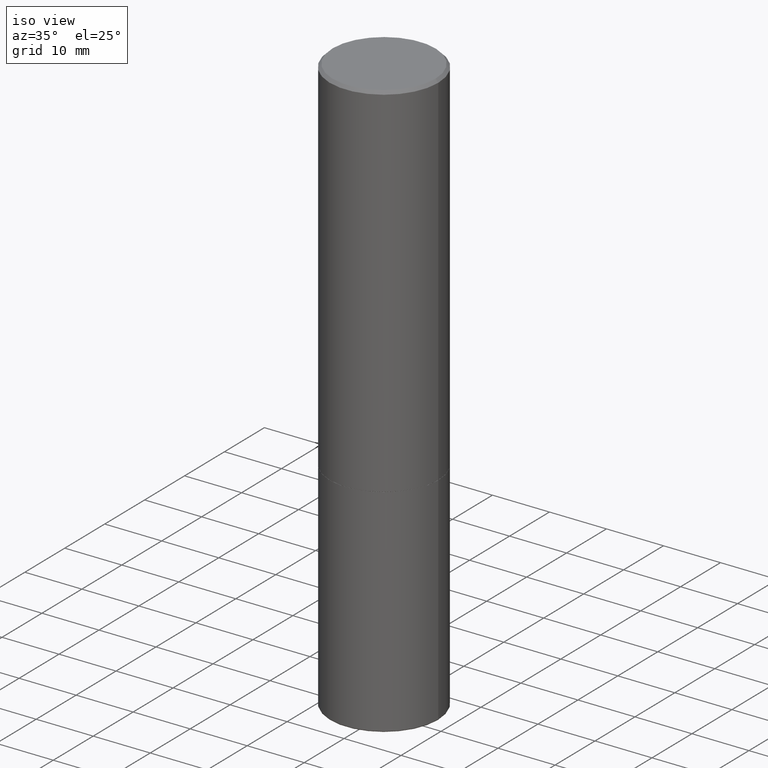
[diagram: clean part render]
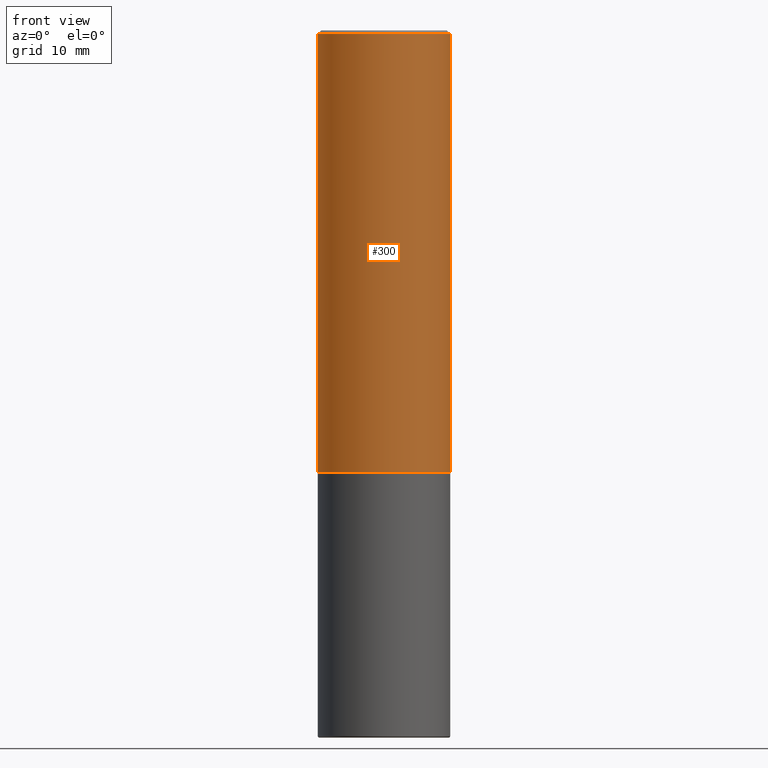
[diagram: tour spotlight — one face highlighted and labeled with its STEP entity id]
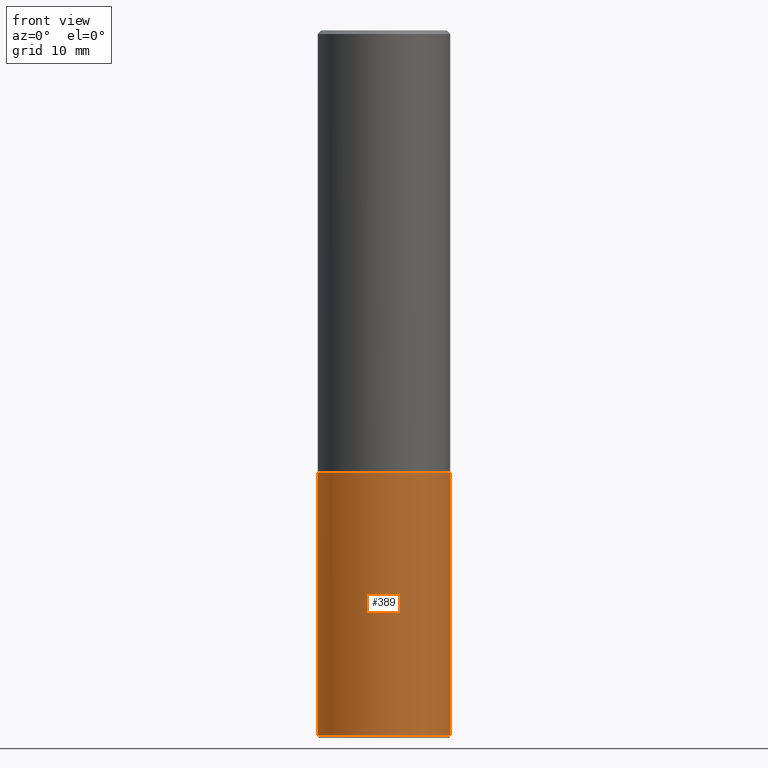
[diagram: tour spotlight — one face highlighted and labeled with its STEP entity id]
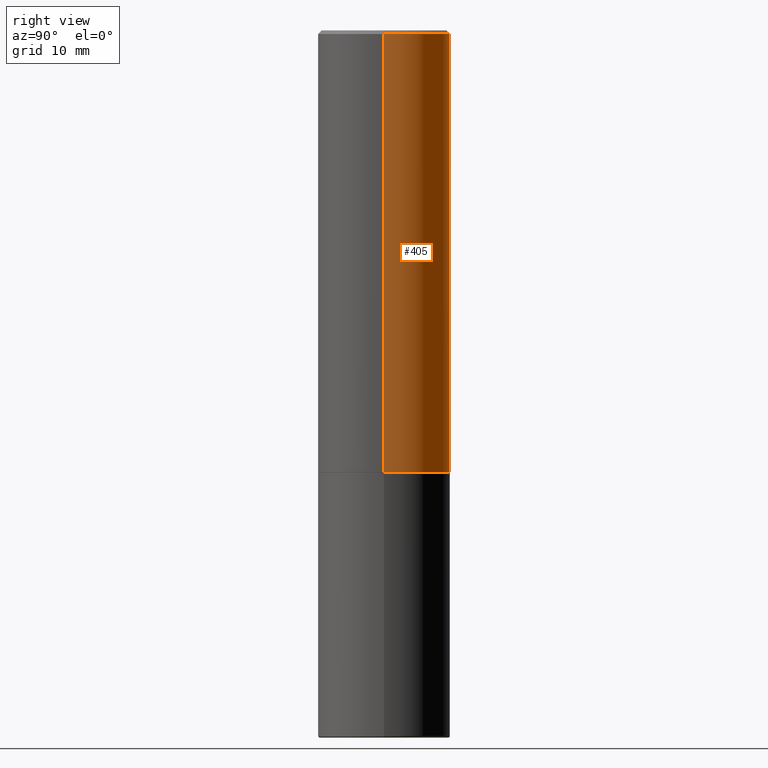
[diagram: tour spotlight — one face highlighted and labeled with its STEP entity id]
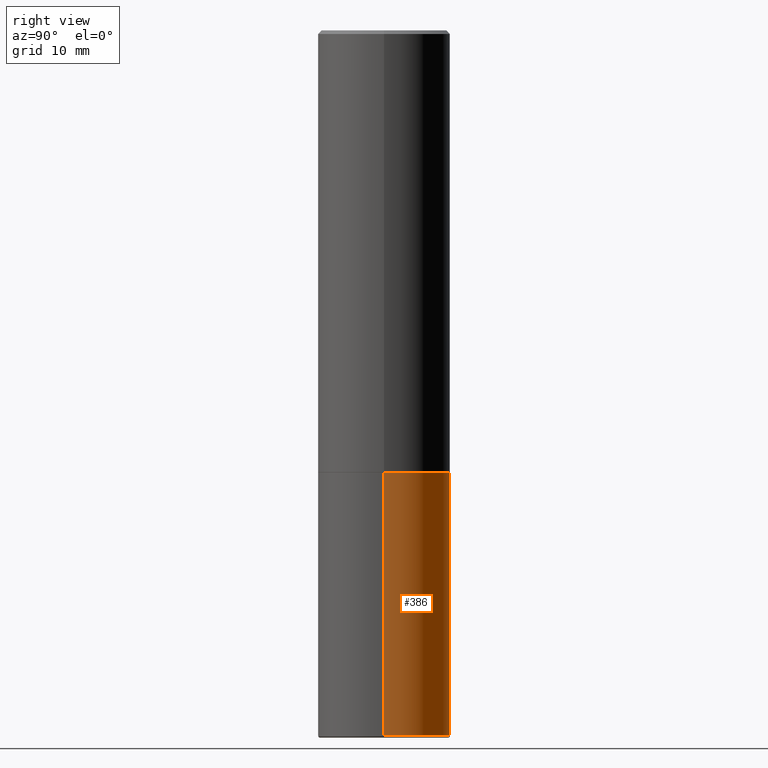
[diagram: tour spotlight — one face highlighted and labeled with its STEP entity id]
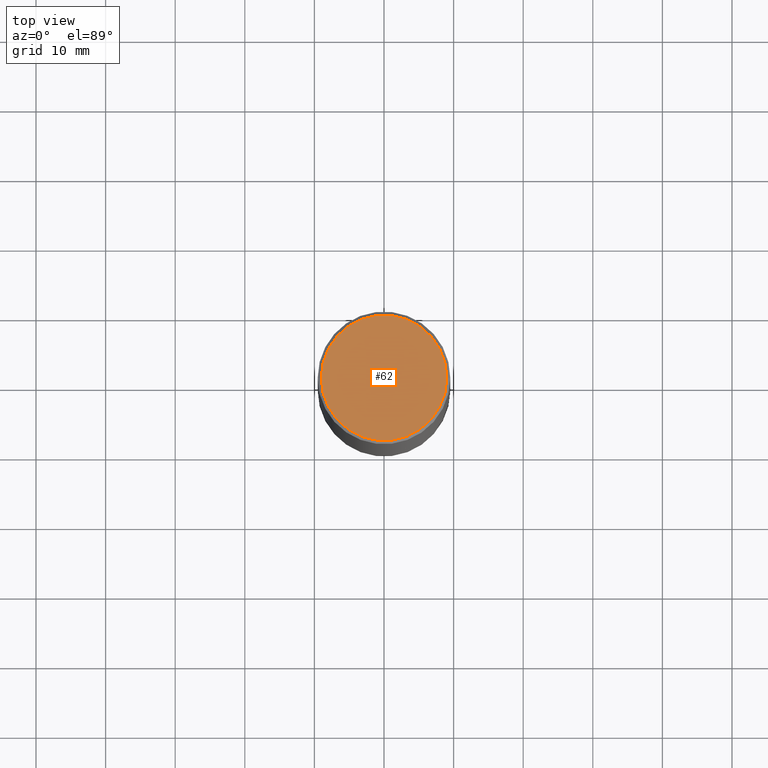
[diagram: tour spotlight — one face highlighted and labeled with its STEP entity id]
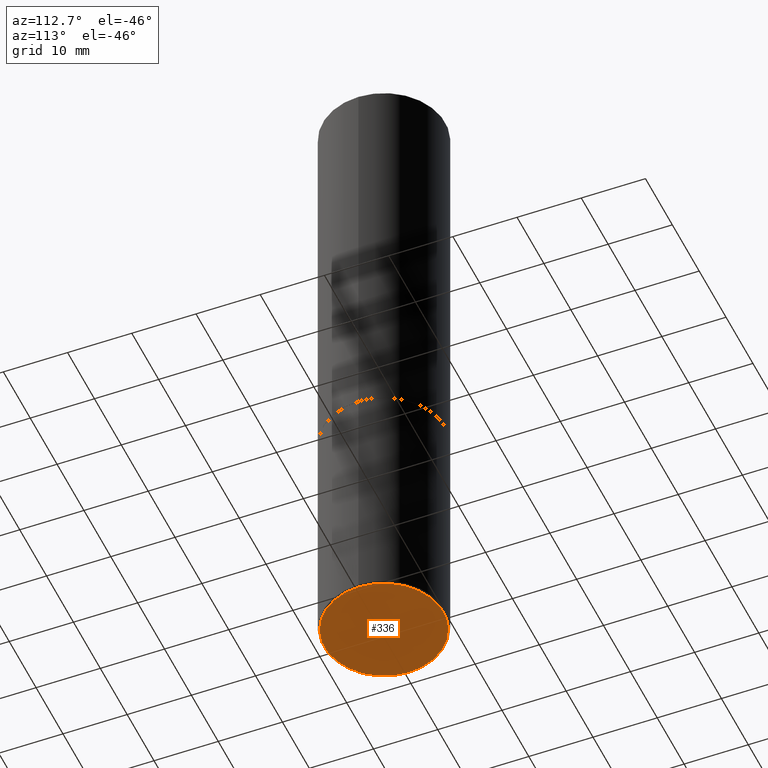
[diagram: tour spotlight — one face highlighted and labeled with its STEP entity id]
A machine part: a face-by-face anatomy tour. The part has 14 B-rep faces; the first image is the clean iso view, then the 6 largest visible faces are spotlighted one at a time (largest first), each with its STEP entity span.

Face 1 — front view, entity #300. In plain terms, the highlighted cylindrical surface (partial cylindrical patch) has radius 9.525 mm, axis along (-0, 0, 1).
Definition (entity closure, byte-faithful):
#4 = DIRECTION ( 'NONE',  ( -2.445468806185136597E-29, 3.491481338843145583E-15, 1.000000000000000000 ) ) ;
#20 = DIRECTION ( 'NONE',  ( 1.000000000000000000, -6.982962677686265922E-15, 0.000000000000000000 ) ) ;
#32 = VERTEX_POINT ( 'NONE', #150 ) ;
#35 = EDGE_LOOP ( 'NONE', ( #408, #136, #194, #264 ) ) ;
#50 = VECTOR ( 'NONE', #193, 39.37007874015748143 ) ;
#92 = LINE ( 'NONE', #296, #50 ) ;
#107 = CARTESIAN_POINT ( 'NONE',  ( 4.890937612370294178E-31, -6.982962677686321191E-17, -0.02000000000000008715 ) ) ;
#128 = CIRCLE ( 'NONE', #178, 0.3750000000000001110 ) ;
#129 = VERTEX_POINT ( 'NONE', #169 ) ;
#136 = ORIENTED_EDGE ( 'NONE', *, *, #236, .T. ) ;
#140 = CARTESIAN_POINT ( 'NONE',  ( 0.3750000000000001110, -2.642516375941188423E-15, -0.02000000000000008715 ) ) ;
#150 = CARTESIAN_POINT ( 'NONE',  ( -0.3750000000000002776, -1.732985487172563764E-15, -2.499000000000000110 ) ) ;
#169 = CARTESIAN_POINT ( 'NONE',  ( 0.3750000000000002776, -1.134382286990137353E-14, -2.499000000000000110 ) ) ;
#175 = CARTESIAN_POINT ( 'NONE',  ( 0.000000000000000000, 0.000000000000000000, 0.000000000000000000 ) ) ;
#178 = AXIS2_PLACEMENT_3D ( 'NONE', #107, #210, #353 ) ;
#193 = DIRECTION ( 'NONE',  ( -2.445468806185136877E-29, 3.491481338843145188E-15, 1.000000000000000000 ) ) ;
#194 = ORIENTED_EDGE ( 'NONE', *, *, #361, .T. ) ;
#203 = DIRECTION ( 'NONE',  ( 1.000000000000000000, -6.982962677686266711E-15, 4.876176775795935793E-29 ) ) ;
#205 = CARTESIAN_POINT ( 'NONE',  ( -0.3750000000000001110, 2.548781377355487113E-15, -0.02000000000000008715 ) ) ;
#207 = VECTOR ( 'NONE', #385, 39.37007874015748143 ) ;
#210 = DIRECTION ( 'NONE',  ( -2.445468806185136597E-29, 3.491481338843145583E-15, 1.000000000000000000 ) ) ;
#212 = EDGE_CURVE ( 'NONE', #32, #343, #92, .T. ) ;
#225 = CARTESIAN_POINT ( 'NONE',  ( 6.111226546656657010E-29, -8.725211865769021935E-15, -2.499000000000000110 ) ) ;
#227 = CIRCLE ( 'NONE', #312, 0.3750000000000002776 ) ;
#236 = EDGE_CURVE ( 'NONE', #32, #129, #227, .T. ) ;
#264 = ORIENTED_EDGE ( 'NONE', *, *, #317, .F. ) ;
#273 = CYLINDRICAL_SURFACE ( 'NONE', #293, 0.3750000000000002220 ) ;
#287 = FACE_OUTER_BOUND ( 'NONE', #35, .T. ) ;
#293 = AXIS2_PLACEMENT_3D ( 'NONE', #175, #4, #203 ) ;
#296 = CARTESIAN_POINT ( 'NONE',  ( -0.3750000000000002220, 2.664535259100377275E-15, -1.844600658845590719E-29 ) ) ;
#300 = ADVANCED_FACE ( 'NONE', ( #287 ), #273, .T. ) ;
#312 = AXIS2_PLACEMENT_3D ( 'NONE', #225, #347, #20 ) ;
#317 = EDGE_CURVE ( 'NONE', #343, #398, #128, .T. ) ;
#331 = CARTESIAN_POINT ( 'NONE',  ( 0.3750000000000002220, -2.618611004132351594E-15, 1.828566290923477043E-29 ) ) ;
#333 = LINE ( 'NONE', #331, #207 ) ;
#343 = VERTEX_POINT ( 'NONE', #205 ) ;
#347 = DIRECTION ( 'NONE',  ( -2.445468806185136597E-29, 3.491481338843145583E-15, 1.000000000000000000 ) ) ;
#353 = DIRECTION ( 'NONE',  ( 1.000000000000000000, -6.982962677686265922E-15, 0.000000000000000000 ) ) ;
#361 = EDGE_CURVE ( 'NONE', #129, #398, #333, .T. ) ;
#385 = DIRECTION ( 'NONE',  ( -2.445468806185136877E-29, 3.491481338843145188E-15, 1.000000000000000000 ) ) ;
#398 = VERTEX_POINT ( 'NONE', #140 ) ;
#408 = ORIENTED_EDGE ( 'NONE', *, *, #212, .F. ) ;

Face 2 — front view, entity #389. In plain terms, the highlighted cylindrical surface (partial cylindrical patch) has radius 9.525 mm, axis along (-0, 0, 1).
Definition (entity closure, byte-faithful):
#1 = EDGE_CURVE ( 'NONE', #253, #224, #288, .T. ) ;
#8 = CARTESIAN_POINT ( 'NONE',  ( 0.000000000000000000, 0.000000000000000000, 0.000000000000000000 ) ) ;
#13 = DIRECTION ( 'NONE',  ( -2.445468806185136597E-29, 3.491481338843145583E-15, 1.000000000000000000 ) ) ;
#18 = VECTOR ( 'NONE', #126, 39.37007874015748143 ) ;
#30 = CARTESIAN_POINT ( 'NONE',  ( -0.3749999999999999445, 2.664535259100375303E-15, -1.844600658845589318E-29 ) ) ;
#49 = EDGE_CURVE ( 'NONE', #303, #224, #72, .T. ) ;
#60 = LINE ( 'NONE', #30, #18 ) ;
#69 = CYLINDRICAL_SURFACE ( 'NONE', #185, 0.3749999999999999445 ) ;
#72 = LINE ( 'NONE', #79, #393 ) ;
#77 = CIRCLE ( 'NONE', #364, 0.3749999999999999445 ) ;
#79 = CARTESIAN_POINT ( 'NONE',  ( 0.3749999999999999445, -2.618611004132349622E-15, 1.828566290923475642E-29 ) ) ;
#97 = ORIENTED_EDGE ( 'NONE', *, *, #180, .T. ) ;
#101 = DIRECTION ( 'NONE',  ( -2.445468806185136597E-29, 3.491481338843145583E-15, 1.000000000000000000 ) ) ;
#126 = DIRECTION ( 'NONE',  ( -2.445468806185136877E-29, 3.491481338843145188E-15, 1.000000000000000000 ) ) ;
#131 = CARTESIAN_POINT ( 'NONE',  ( 9.757420536678694842E-29, -1.393101054198414910E-14, -3.989999999999999769 ) ) ;
#138 = DIRECTION ( 'NONE',  ( 1.000000000000000000, -6.982962677686266711E-15, 4.876176775795935793E-29 ) ) ;
#172 = ORIENTED_EDGE ( 'NONE', *, *, #49, .T. ) ;
#177 = FACE_OUTER_BOUND ( 'NONE', #222, .T. ) ;
#180 = EDGE_CURVE ( 'NONE', #218, #303, #77, .T. ) ;
#185 = AXIS2_PLACEMENT_3D ( 'NONE', #8, #101, #138 ) ;
#199 = CARTESIAN_POINT ( 'NONE',  ( 0.3750000000000000555, -1.134731435124021338E-14, -2.500000000000000000 ) ) ;
#211 = EDGE_CURVE ( 'NONE', #218, #253, #60, .T. ) ;
#218 = VERTEX_POINT ( 'NONE', #418 ) ;
#222 = EDGE_LOOP ( 'NONE', ( #375, #97, #172, #237 ) ) ;
#224 = VERTEX_POINT ( 'NONE', #199 ) ;
#237 = ORIENTED_EDGE ( 'NONE', *, *, #1, .F. ) ;
#250 = CARTESIAN_POINT ( 'NONE',  ( 6.113672015462842613E-29, -8.728703347107864943E-15, -2.500000000000000000 ) ) ;
#253 = VERTEX_POINT ( 'NONE', #258 ) ;
#258 = CARTESIAN_POINT ( 'NONE',  ( -0.3750000000000000555, -8.665321685445630537E-15, -2.500000000000000000 ) ) ;
#259 = DIRECTION ( 'NONE',  ( -2.445468806185136597E-29, 3.491481338843145583E-15, 1.000000000000000000 ) ) ;
#270 = AXIS2_PLACEMENT_3D ( 'NONE', #250, #13, #366 ) ;
#288 = CIRCLE ( 'NONE', #270, 0.3750000000000000555 ) ;
#303 = VERTEX_POINT ( 'NONE', #334 ) ;
#334 = CARTESIAN_POINT ( 'NONE',  ( 0.3749999999999999445, -1.654962154611649754E-14, -3.989999999999999769 ) ) ;
#362 = DIRECTION ( 'NONE',  ( -2.445468806185136877E-29, 3.491481338843145188E-15, 1.000000000000000000 ) ) ;
#364 = AXIS2_PLACEMENT_3D ( 'NONE', #131, #259, #413 ) ;
#366 = DIRECTION ( 'NONE',  ( 1.000000000000000000, -6.982962677686264344E-15, 0.000000000000000000 ) ) ;
#375 = ORIENTED_EDGE ( 'NONE', *, *, #211, .F. ) ;
#389 = ADVANCED_FACE ( 'NONE', ( #177 ), #69, .T. ) ;
#393 = VECTOR ( 'NONE', #362, 39.37007874015748143 ) ;
#413 = DIRECTION ( 'NONE',  ( 1.000000000000000000, -6.982962677686263555E-15, 0.000000000000000000 ) ) ;
#418 = CARTESIAN_POINT ( 'NONE',  ( -0.3749999999999999445, -1.126647528288377341E-14, -3.989999999999999769 ) ) ;

Face 3 — right view, entity #405. In plain terms, the highlighted cylindrical surface (partial cylindrical patch) has radius 9.525 mm, axis along (-0, 0, 1).
Definition (entity closure, byte-faithful):
#32 = VERTEX_POINT ( 'NONE', #150 ) ;
#40 = ORIENTED_EDGE ( 'NONE', *, *, #212, .T. ) ;
#47 = EDGE_LOOP ( 'NONE', ( #233, #40, #265, #117 ) ) ;
#50 = VECTOR ( 'NONE', #193, 39.37007874015748143 ) ;
#63 = CYLINDRICAL_SURFACE ( 'NONE', #243, 0.3750000000000002220 ) ;
#92 = LINE ( 'NONE', #296, #50 ) ;
#98 = EDGE_CURVE ( 'NONE', #129, #32, #373, .T. ) ;
#117 = ORIENTED_EDGE ( 'NONE', *, *, #361, .F. ) ;
#129 = VERTEX_POINT ( 'NONE', #169 ) ;
#140 = CARTESIAN_POINT ( 'NONE',  ( 0.3750000000000001110, -2.642516375941188423E-15, -0.02000000000000008715 ) ) ;
#150 = CARTESIAN_POINT ( 'NONE',  ( -0.3750000000000002776, -1.732985487172563764E-15, -2.499000000000000110 ) ) ;
#156 = DIRECTION ( 'NONE',  ( -2.445468806185136597E-29, 3.491481338843145583E-15, 1.000000000000000000 ) ) ;
#169 = CARTESIAN_POINT ( 'NONE',  ( 0.3750000000000002776, -1.134382286990137353E-14, -2.499000000000000110 ) ) ;
#173 = CARTESIAN_POINT ( 'NONE',  ( 0.000000000000000000, 0.000000000000000000, 0.000000000000000000 ) ) ;
#193 = DIRECTION ( 'NONE',  ( -2.445468806185136877E-29, 3.491481338843145188E-15, 1.000000000000000000 ) ) ;
#205 = CARTESIAN_POINT ( 'NONE',  ( -0.3750000000000001110, 2.548781377355487113E-15, -0.02000000000000008715 ) ) ;
#207 = VECTOR ( 'NONE', #385, 39.37007874015748143 ) ;
#212 = EDGE_CURVE ( 'NONE', #32, #343, #92, .T. ) ;
#228 = AXIS2_PLACEMENT_3D ( 'NONE', #315, #156, #308 ) ;
#233 = ORIENTED_EDGE ( 'NONE', *, *, #98, .T. ) ;
#235 = DIRECTION ( 'NONE',  ( 1.000000000000000000, -6.982962677686265922E-15, 0.000000000000000000 ) ) ;
#243 = AXIS2_PLACEMENT_3D ( 'NONE', #173, #298, #356 ) ;
#257 = CIRCLE ( 'NONE', #415, 0.3750000000000001110 ) ;
#265 = ORIENTED_EDGE ( 'NONE', *, *, #404, .F. ) ;
#271 = CARTESIAN_POINT ( 'NONE',  ( 4.890937612370294178E-31, -6.982962677686321191E-17, -0.02000000000000008715 ) ) ;
#296 = CARTESIAN_POINT ( 'NONE',  ( -0.3750000000000002220, 2.664535259100377275E-15, -1.844600658845590719E-29 ) ) ;
#298 = DIRECTION ( 'NONE',  ( -2.445468806185136597E-29, 3.491481338843145583E-15, 1.000000000000000000 ) ) ;
#301 = FACE_OUTER_BOUND ( 'NONE', #47, .T. ) ;
#308 = DIRECTION ( 'NONE',  ( 1.000000000000000000, -6.982962677686265922E-15, 0.000000000000000000 ) ) ;
#315 = CARTESIAN_POINT ( 'NONE',  ( 6.111226546656657010E-29, -8.725211865769021935E-15, -2.499000000000000110 ) ) ;
#331 = CARTESIAN_POINT ( 'NONE',  ( 0.3750000000000002220, -2.618611004132351594E-15, 1.828566290923477043E-29 ) ) ;
#333 = LINE ( 'NONE', #331, #207 ) ;
#343 = VERTEX_POINT ( 'NONE', #205 ) ;
#356 = DIRECTION ( 'NONE',  ( 1.000000000000000000, -6.982962677686266711E-15, 4.876176775795935793E-29 ) ) ;
#361 = EDGE_CURVE ( 'NONE', #129, #398, #333, .T. ) ;
#373 = CIRCLE ( 'NONE', #228, 0.3750000000000002776 ) ;
#384 = DIRECTION ( 'NONE',  ( -2.445468806185136597E-29, 3.491481338843145583E-15, 1.000000000000000000 ) ) ;
#385 = DIRECTION ( 'NONE',  ( -2.445468806185136877E-29, 3.491481338843145188E-15, 1.000000000000000000 ) ) ;
#398 = VERTEX_POINT ( 'NONE', #140 ) ;
#404 = EDGE_CURVE ( 'NONE', #398, #343, #257, .T. ) ;
#405 = ADVANCED_FACE ( 'NONE', ( #301 ), #63, .T. ) ;
#415 = AXIS2_PLACEMENT_3D ( 'NONE', #271, #384, #235 ) ;

Face 4 — right view, entity #386. In plain terms, the highlighted cylindrical surface (partial cylindrical patch) has radius 9.525 mm, axis along (-0, 0, 1).
Definition (entity closure, byte-faithful):
#3 = DIRECTION ( 'NONE',  ( -2.445468806185136597E-29, 3.491481338843145583E-15, 1.000000000000000000 ) ) ;
#18 = VECTOR ( 'NONE', #126, 39.37007874015748143 ) ;
#30 = CARTESIAN_POINT ( 'NONE',  ( -0.3749999999999999445, 2.664535259100375303E-15, -1.844600658845589318E-29 ) ) ;
#34 = DIRECTION ( 'NONE',  ( 1.000000000000000000, -6.982962677686266711E-15, 4.876176775795935793E-29 ) ) ;
#49 = EDGE_CURVE ( 'NONE', #303, #224, #72, .T. ) ;
#56 = ORIENTED_EDGE ( 'NONE', *, *, #211, .T. ) ;
#60 = LINE ( 'NONE', #30, #18 ) ;
#72 = LINE ( 'NONE', #79, #393 ) ;
#79 = CARTESIAN_POINT ( 'NONE',  ( 0.3749999999999999445, -2.618611004132349622E-15, 1.828566290923475642E-29 ) ) ;
#82 = EDGE_LOOP ( 'NONE', ( #329, #56, #155, #345 ) ) ;
#86 = EDGE_CURVE ( 'NONE', #224, #253, #130, .T. ) ;
#106 = AXIS2_PLACEMENT_3D ( 'NONE', #359, #335, #133 ) ;
#126 = DIRECTION ( 'NONE',  ( -2.445468806185136877E-29, 3.491481338843145188E-15, 1.000000000000000000 ) ) ;
#130 = CIRCLE ( 'NONE', #399, 0.3750000000000000555 ) ;
#133 = DIRECTION ( 'NONE',  ( 1.000000000000000000, -6.982962677686263555E-15, 0.000000000000000000 ) ) ;
#155 = ORIENTED_EDGE ( 'NONE', *, *, #86, .F. ) ;
#160 = AXIS2_PLACEMENT_3D ( 'NONE', #390, #3, #34 ) ;
#176 = FACE_OUTER_BOUND ( 'NONE', #82, .T. ) ;
#179 = CARTESIAN_POINT ( 'NONE',  ( 6.113672015462842613E-29, -8.728703347107864943E-15, -2.500000000000000000 ) ) ;
#199 = CARTESIAN_POINT ( 'NONE',  ( 0.3750000000000000555, -1.134731435124021338E-14, -2.500000000000000000 ) ) ;
#201 = CIRCLE ( 'NONE', #106, 0.3749999999999999445 ) ;
#211 = EDGE_CURVE ( 'NONE', #218, #253, #60, .T. ) ;
#218 = VERTEX_POINT ( 'NONE', #418 ) ;
#224 = VERTEX_POINT ( 'NONE', #199 ) ;
#253 = VERTEX_POINT ( 'NONE', #258 ) ;
#258 = CARTESIAN_POINT ( 'NONE',  ( -0.3750000000000000555, -8.665321685445630537E-15, -2.500000000000000000 ) ) ;
#281 = DIRECTION ( 'NONE',  ( -2.445468806185136597E-29, 3.491481338843145583E-15, 1.000000000000000000 ) ) ;
#303 = VERTEX_POINT ( 'NONE', #334 ) ;
#325 = EDGE_CURVE ( 'NONE', #303, #218, #201, .T. ) ;
#329 = ORIENTED_EDGE ( 'NONE', *, *, #325, .T. ) ;
#330 = CYLINDRICAL_SURFACE ( 'NONE', #160, 0.3749999999999999445 ) ;
#334 = CARTESIAN_POINT ( 'NONE',  ( 0.3749999999999999445, -1.654962154611649754E-14, -3.989999999999999769 ) ) ;
#335 = DIRECTION ( 'NONE',  ( -2.445468806185136597E-29, 3.491481338843145583E-15, 1.000000000000000000 ) ) ;
#345 = ORIENTED_EDGE ( 'NONE', *, *, #49, .F. ) ;
#359 = CARTESIAN_POINT ( 'NONE',  ( 9.757420536678694842E-29, -1.393101054198414910E-14, -3.989999999999999769 ) ) ;
#362 = DIRECTION ( 'NONE',  ( -2.445468806185136877E-29, 3.491481338843145188E-15, 1.000000000000000000 ) ) ;
#386 = ADVANCED_FACE ( 'NONE', ( #176 ), #330, .T. ) ;
#390 = CARTESIAN_POINT ( 'NONE',  ( 0.000000000000000000, 0.000000000000000000, 0.000000000000000000 ) ) ;
#393 = VECTOR ( 'NONE', #362, 39.37007874015748143 ) ;
#399 = AXIS2_PLACEMENT_3D ( 'NONE', #179, #281, #401 ) ;
#401 = DIRECTION ( 'NONE',  ( 1.000000000000000000, -6.982962677686264344E-15, 0.000000000000000000 ) ) ;
#418 = CARTESIAN_POINT ( 'NONE',  ( -0.3749999999999999445, -1.126647528288377341E-14, -3.989999999999999769 ) ) ;

Face 5 — top view, entity #62. In plain terms, the highlighted planar face has unit normal (0, -0, -1).
Definition (entity closure, byte-faithful):
#2 = EDGE_LOOP ( 'NONE', ( #134, #81 ) ) ;
#15 = PLANE ( 'NONE',  #314 ) ;
#27 = DIRECTION ( 'NONE',  ( 1.000000000000000000, -6.982962677686265922E-15, 4.874095744806113407E-29 ) ) ;
#41 = DIRECTION ( 'NONE',  ( 1.000000000000000000, -6.982962677686265922E-15, 4.874095744806113407E-29 ) ) ;
#51 = VERTEX_POINT ( 'NONE', #220 ) ;
#53 = FACE_OUTER_BOUND ( 'NONE', #2, .T. ) ;
#62 = ADVANCED_FACE ( 'NONE', ( #53 ), #15, .F. ) ;
#80 = EDGE_CURVE ( 'NONE', #51, #332, #251, .T. ) ;
#81 = ORIENTED_EDGE ( 'NONE', *, *, #143, .T. ) ;
#127 = CARTESIAN_POINT ( 'NONE',  ( -2.922783960138615261E-45, 4.172960877065252270E-31, 1.195183497228115035E-16 ) ) ;
#134 = ORIENTED_EDGE ( 'NONE', *, *, #80, .T. ) ;
#143 = EDGE_CURVE ( 'NONE', #332, #51, #197, .T. ) ;
#197 = CIRCLE ( 'NONE', #388, 0.3549999999999999822 ) ;
#213 = DIRECTION ( 'NONE',  ( -2.445468806185136597E-29, 3.491481338843145583E-15, 1.000000000000000000 ) ) ;
#216 = DIRECTION ( 'NONE',  ( 2.438088387897960049E-29, -3.491481338843145188E-15, -1.000000000000000000 ) ) ;
#220 = CARTESIAN_POINT ( 'NONE',  ( -0.3549999999999999822, 2.513866563967055858E-15, 1.195183497227940499E-16 ) ) ;
#242 = CARTESIAN_POINT ( 'NONE',  ( 0.3549999999999999822, -2.538996582575041048E-15, 1.195183497228290556E-16 ) ) ;
#251 = CIRCLE ( 'NONE', #350, 0.3549999999999999822 ) ;
#256 = CARTESIAN_POINT ( 'NONE',  ( 2.478951750578624209E-15, 0.3549999999999999822, -1.179716700427910864E-15 ) ) ;
#311 = CARTESIAN_POINT ( 'NONE',  ( -2.922783960138615261E-45, 4.172960877065252270E-31, 1.195183497228115035E-16 ) ) ;
#314 = AXIS2_PLACEMENT_3D ( 'NONE', #256, #216, #406 ) ;
#320 = DIRECTION ( 'NONE',  ( -2.445468806185136597E-29, 3.491481338843145583E-15, 1.000000000000000000 ) ) ;
#332 = VERTEX_POINT ( 'NONE', #242 ) ;
#350 = AXIS2_PLACEMENT_3D ( 'NONE', #311, #213, #41 ) ;
#388 = AXIS2_PLACEMENT_3D ( 'NONE', #127, #320, #27 ) ;
#406 = DIRECTION ( 'NONE',  ( -1.000000000000000000, 6.982962677686265922E-15, -4.876176775795935793E-29 ) ) ;

Face 6 — auxiliary view, entity #336. In plain terms, the highlighted planar face has unit normal (0, -0, -1).
Definition (entity closure, byte-faithful):
#7 = AXIS2_PLACEMENT_3D ( 'NONE', #163, #262, #380 ) ;
#28 = CARTESIAN_POINT ( 'NONE',  ( 0.3649999999999999356, -1.651470673272807063E-14, -4.000000000000000000 ) ) ;
#38 = CARTESIAN_POINT ( 'NONE',  ( 9.781875224740546387E-29, -1.396592535537258233E-14, -4.000000000000000000 ) ) ;
#58 = EDGE_LOOP ( 'NONE', ( #321, #120 ) ) ;
#67 = FACE_OUTER_BOUND ( 'NONE', #58, .T. ) ;
#96 = CARTESIAN_POINT ( 'NONE',  ( 9.781875224740546387E-29, -1.396592535537258233E-14, -4.000000000000000000 ) ) ;
#110 = EDGE_CURVE ( 'NONE', #186, #284, #202, .T. ) ;
#115 = AXIS2_PLACEMENT_3D ( 'NONE', #96, #230, #290 ) ;
#120 = ORIENTED_EDGE ( 'NONE', *, *, #158, .F. ) ;
#135 = DIRECTION ( 'NONE',  ( 2.438088387897960049E-29, -3.491481338843145188E-15, -1.000000000000000000 ) ) ;
#142 = DIRECTION ( 'NONE',  ( -1.000000000000000000, 6.982962677686265922E-15, -4.876176775795935793E-29 ) ) ;
#158 = EDGE_CURVE ( 'NONE', #284, #186, #340, .T. ) ;
#163 = CARTESIAN_POINT ( 'NONE',  ( 9.781875224740546387E-29, -1.396592535537258233E-14, -4.000000000000000000 ) ) ;
#186 = VERTEX_POINT ( 'NONE', #28 ) ;
#202 = CIRCLE ( 'NONE', #7, 0.3649999999999999356 ) ;
#230 = DIRECTION ( 'NONE',  ( -2.445468806185136597E-29, 3.491481338843145583E-15, 1.000000000000000000 ) ) ;
#262 = DIRECTION ( 'NONE',  ( -2.445468806185136597E-29, 3.491481338843145583E-15, 1.000000000000000000 ) ) ;
#268 = PLANE ( 'NONE',  #274 ) ;
#274 = AXIS2_PLACEMENT_3D ( 'NONE', #38, #135, #142 ) ;
#284 = VERTEX_POINT ( 'NONE', #316 ) ;
#290 = DIRECTION ( 'NONE',  ( 1.000000000000000000, -6.982962677686267499E-15, 0.000000000000000000 ) ) ;
#316 = CARTESIAN_POINT ( 'NONE',  ( -0.3649999999999999356, -1.131945982636599743E-14, -4.000000000000000000 ) ) ;
#321 = ORIENTED_EDGE ( 'NONE', *, *, #110, .F. ) ;
#336 = ADVANCED_FACE ( 'NONE', ( #67 ), #268, .T. ) ;
#340 = CIRCLE ( 'NONE', #115, 0.3649999999999999356 ) ;
#380 = DIRECTION ( 'NONE',  ( 1.000000000000000000, -6.982962677686267499E-15, 0.000000000000000000 ) ) ;